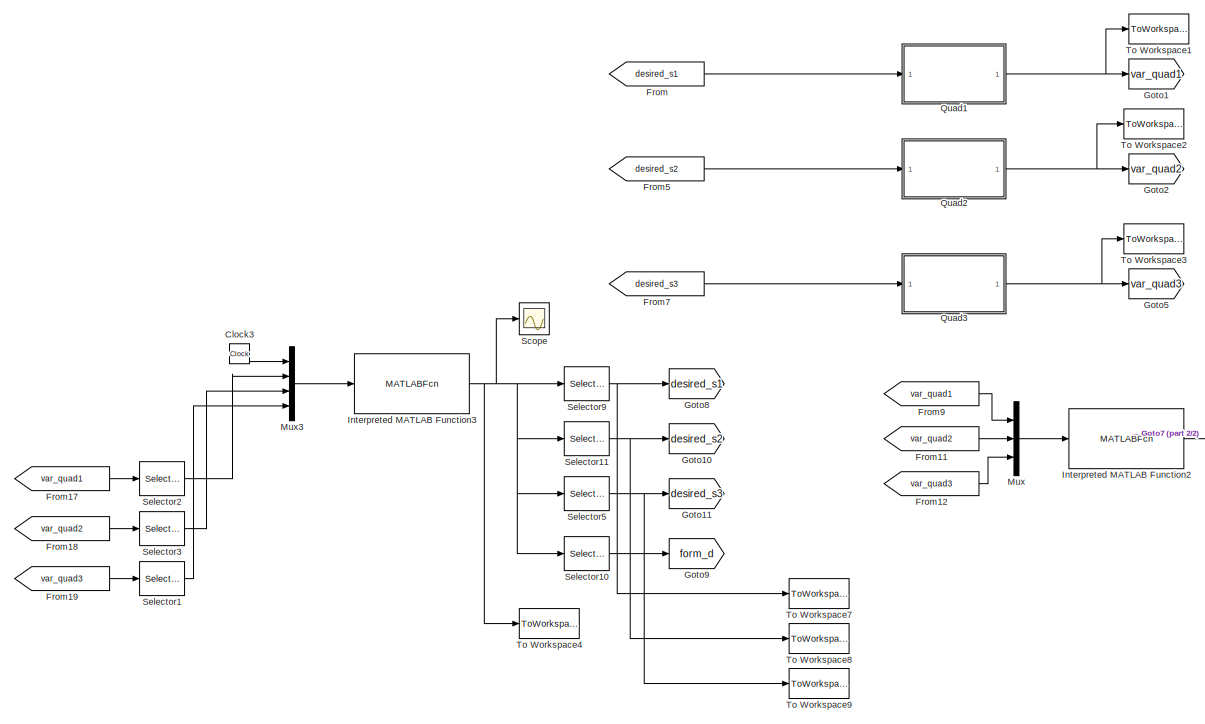
[diagram: root canvas - part 1/2, most of the canvas]
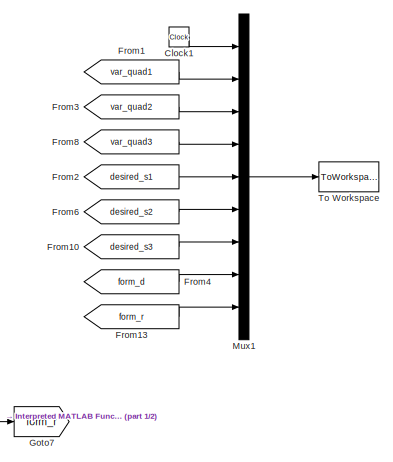
[diagram: root canvas - part 2/2, middle right region]
MODEL slx_cbf6b608a6d2
KIND model
CONFIG AbsTol = auto
CONFIG EnableMultiTasking = off
CONFIG FixedStep = auto
CONFIG MaxStep = auto
CONFIG MinStep = auto
CONFIG RelTol = 1e-3
CONFIG SampleTimeConstraint = Unconstrained
CONFIG Solver = VariableStepAuto
CONFIG SolverName = VariableStepAuto
CONFIG StartTime = 0.0
CONFIG StopTime = 100
BLOCK [Clock] Clock1
BLOCK [Clock] Clock3
BLOCK [From] From
  GotoTag = desired_s1
BLOCK [From] From1
  GotoTag = var_quad1
BLOCK [From] From10
  GotoTag = desired_s3
BLOCK [From] From11
  GotoTag = var_quad2
BLOCK [From] From12
  GotoTag = var_quad3
BLOCK [From] From13
  GotoTag = form_r
BLOCK [From] From17
  GotoTag = var_quad1
BLOCK [From] From18
  GotoTag = var_quad2
BLOCK [From] From19
  GotoTag = var_quad3
BLOCK [From] From2
  GotoTag = desired_s1
BLOCK [From] From3
  GotoTag = var_quad2
BLOCK [From] From4
  GotoTag = form_d
BLOCK [From] From5
  GotoTag = desired_s2
BLOCK [From] From6
  GotoTag = desired_s2
BLOCK [From] From7
  GotoTag = desired_s3
BLOCK [From] From8
  GotoTag = var_quad3
BLOCK [From] From9
  GotoTag = var_quad1
BLOCK [Goto] Goto1
  GotoTag = var_quad1
BLOCK [Goto] Goto10
  GotoTag = desired_s2
BLOCK [Goto] Goto11
  GotoTag = desired_s3
BLOCK [Goto] Goto2
  GotoTag = var_quad2
BLOCK [Goto] Goto5
  GotoTag = var_quad3
BLOCK [Goto] Goto7
  GotoTag = form_r
BLOCK [Goto] Goto8
  GotoTag = desired_s1
BLOCK [Goto] Goto9
  GotoTag = form_d
BLOCK [MATLABFcn] Interpreted MATLAB Function2
  MATLABFcn = Compute_F
  Ports = [1, 1]
BLOCK [MATLABFcn] Interpreted MATLAB Function3
  MATLABFcn = desiredtrajectory_
  Ports = [1, 1]
BLOCK [Mux] Mux
  DisplayOption = bar
  Inputs = 3
  Ports = [3, 1]
BLOCK [Mux] Mux1
  DisplayOption = bar
  Inputs = 9
  Ports = [9, 1]
BLOCK [Mux] Mux3
  DisplayOption = bar
  Ports = [4, 1]
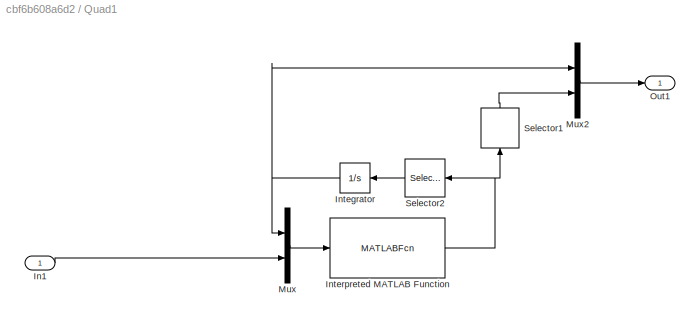
BLOCK [SubSystem] Quad1
  Ports = [1, 1]
  RequestExecContextInheritance = off
BLOCK [Inport] Quad1/In1
  IconDisplay = Port number
BLOCK [Integrator] Quad1/Integrator
  InitialCondition = des_quad10
  Ports = [1, 1]
BLOCK [MATLABFcn] Quad1/Interpreted MATLAB Function
  MATLABFcn = quadEOM_sim
  OutputDimensions = 27
  Ports = [1, 1]
BLOCK [Mux] Quad1/Mux
  DisplayOption = bar
  Inputs = 2
  Ports = [2, 1]
BLOCK [Mux] Quad1/Mux2
  DisplayOption = bar
  Inputs = 2
  Ports = [2, 1]
BLOCK [Outport] Quad1/Out1
  IconDisplay = Port number
BLOCK [Selector] Quad1/Selector1
  IndexOptions = Index vector (dialog)
  Indices = [14:27]
  InputPortWidth = 27
  OutputSizes = 1
  Ports = [1, 1]
BLOCK [Selector] Quad1/Selector2
  IndexOptions = Index vector (dialog)
  Indices = [1:13]
  InputPortWidth = 27
  OutputSizes = 1
  Ports = [1, 1]
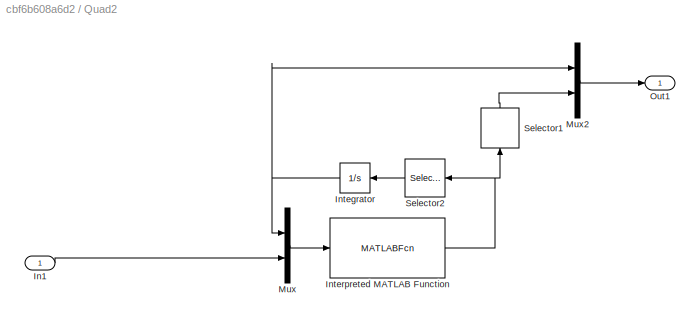
BLOCK [SubSystem] Quad2
  Ports = [1, 1]
  RequestExecContextInheritance = off
BLOCK [Inport] Quad2/In1
  IconDisplay = Port number
BLOCK [Integrator] Quad2/Integrator
  InitialCondition = des_quad20
  Ports = [1, 1]
BLOCK [MATLABFcn] Quad2/Interpreted MATLAB Function
  MATLABFcn = quadEOM_sim
  OutputDimensions = 27
  Ports = [1, 1]
BLOCK [Mux] Quad2/Mux
  DisplayOption = bar
  Inputs = 2
  Ports = [2, 1]
BLOCK [Mux] Quad2/Mux2
  DisplayOption = bar
  Inputs = 2
  Ports = [2, 1]
BLOCK [Outport] Quad2/Out1
  IconDisplay = Port number
BLOCK [Selector] Quad2/Selector1
  IndexOptions = Index vector (dialog)
  Indices = [14:27]
  InputPortWidth = 27
  OutputSizes = 1
  Ports = [1, 1]
BLOCK [Selector] Quad2/Selector2
  IndexOptions = Index vector (dialog)
  Indices = [1:13]
  InputPortWidth = 27
  OutputSizes = 1
  Ports = [1, 1]
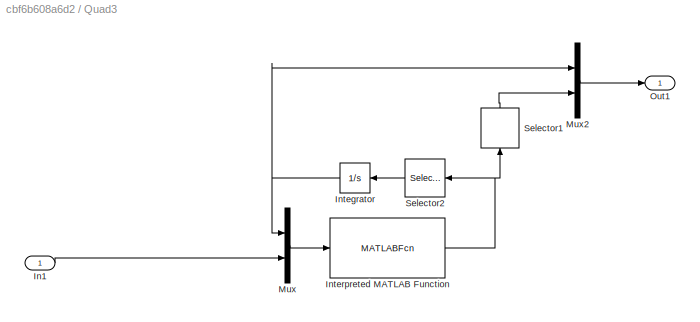
BLOCK [SubSystem] Quad3
  Ports = [1, 1]
  RequestExecContextInheritance = off
BLOCK [Inport] Quad3/In1
  IconDisplay = Port number
BLOCK [Integrator] Quad3/Integrator
  InitialCondition = des_quad30
  Ports = [1, 1]
BLOCK [MATLABFcn] Quad3/Interpreted MATLAB Function
  MATLABFcn = quadEOM_sim
  OutputDimensions = 27
  Ports = [1, 1]
BLOCK [Mux] Quad3/Mux
  DisplayOption = bar
  Inputs = 2
  Ports = [2, 1]
BLOCK [Mux] Quad3/Mux2
  DisplayOption = bar
  Inputs = 2
  Ports = [2, 1]
BLOCK [Outport] Quad3/Out1
  IconDisplay = Port number
BLOCK [Selector] Quad3/Selector1
  IndexOptions = Index vector (dialog)
  Indices = [14:27]
  InputPortWidth = 27
  OutputSizes = 1
  Ports = [1, 1]
BLOCK [Selector] Quad3/Selector2
  IndexOptions = Index vector (dialog)
  Indices = [1:13]
  InputPortWidth = 27
  OutputSizes = 1
  Ports = [1, 1]
BLOCK [Scope] Scope
  Floating = off
  NumInputPorts = 1
  Ports = [1]
  ScopeSpecificationString = Simulink.scopes.TimeScopeBlockCfg('CurrentConfiguration', extmgr.ConfigurationSet(extmgr.Configuration('Core','General UI',true),extmgr.Configuration('Core','Source UI',true),extmgr.Configuration('Sources','WiredSimulink',true),extmgr.Configuration('Visuals','Time Domain',true,'SerializedDisplays',{struct('MinYLimReal','-2.50304','MaxYLimReal','12.50304','YLabelReal','','MinYLimMag','0.00000','Max...<+2605ch>
BLOCK [Selector] Selector1
  IndexOptions = Index vector (dialog)
  Indices = [1:3]
  InputPortWidth = 27
  OutputSizes = 1
  Ports = [1, 1]
BLOCK [Selector] Selector10
  IndexOptions = Index vector (dialog)
  Indices = [30:38]
  InputPortWidth = 38
  OutputSizes = 1
  Ports = [1, 1]
BLOCK [Selector] Selector11
  IndexOptions = Index vector (dialog)
  Indices = [10:18, 28, 29]
  InputPortWidth = 38
  OutputSizes = 1
  Ports = [1, 1]
BLOCK [Selector] Selector2
  IndexOptions = Index vector (dialog)
  Indices = [1:3]
  InputPortWidth = 27
  OutputSizes = 1
  Ports = [1, 1]
BLOCK [Selector] Selector3
  IndexOptions = Index vector (dialog)
  Indices = [1:3]
  InputPortWidth = 27
  OutputSizes = 1
  Ports = [1, 1]
BLOCK [Selector] Selector5
  IndexOptions = Index vector (dialog)
  Indices = [19:27, 28, 29]
  InputPortWidth = 38
  OutputSizes = 1
  Ports = [1, 1]
BLOCK [Selector] Selector9
  IndexOptions = Index vector (dialog)
  Indices = [1:9, 28, 29]
  InputPortWidth = 38
  OutputSizes = 1
  Ports = [1, 1]
BLOCK [ToWorkspace] To Workspace
  FixptAsFi = on
  MaxDataPoints = inf
  Ports = [1]
  SampleTime = -1
  VariableName = var
BLOCK [ToWorkspace] To Workspace1
  FixptAsFi = on
  MaxDataPoints = inf
  Ports = [1]
  SampleTime = -1
  VariableName = out1
BLOCK [ToWorkspace] To Workspace2
  FixptAsFi = on
  MaxDataPoints = inf
  Ports = [1]
  SampleTime = -1
  VariableName = out2
BLOCK [ToWorkspace] To Workspace3
  FixptAsFi = on
  MaxDataPoints = inf
  Ports = [1]
  SampleTime = -1
  VariableName = out3
BLOCK [ToWorkspace] To Workspace4
  FixptAsFi = on
  MaxDataPoints = inf
  Ports = [1]
  SampleTime = -1
  VariableName = des
BLOCK [ToWorkspace] To Workspace7
  FixptAsFi = on
  MaxDataPoints = inf
  Ports = [1]
  SampleTime = -1
  VariableName = des1
BLOCK [ToWorkspace] To Workspace8
  FixptAsFi = on
  MaxDataPoints = inf
  Ports = [1]
  SampleTime = -1
  VariableName = des2
BLOCK [ToWorkspace] To Workspace9
  FixptAsFi = on
  MaxDataPoints = inf
  Ports = [1]
  SampleTime = -1
  VariableName = des3
LINE Clock1:1 -> Mux1:1
LINE Clock3:1 -> Mux3:1
LINE From10:1 -> Mux1:7
LINE From11:1 -> Mux:2
LINE From12:1 -> Mux:3
LINE From13:1 -> Mux1:9
LINE From17:1 -> Selector2:1
LINE From18:1 -> Selector3:1
LINE From19:1 -> Selector1:1
LINE From1:1 -> Mux1:2
LINE From2:1 -> Mux1:5
LINE From3:1 -> Mux1:3
LINE From4:1 -> Mux1:8
LINE From5:1 -> Quad2:1
LINE From6:1 -> Mux1:6
LINE From7:1 -> Quad3:1
LINE From8:1 -> Mux1:4
LINE From9:1 -> Mux:1
LINE From:1 -> Quad1:1
LINE Interpreted MATLAB Function2:1 -> Goto7:1
NET Interpreted MATLAB Function3:1 -> Scope:1, Selector10:1, Selector11:1, Selector5:1, Selector9:1, To Workspace4:1
LINE Mux1:1 -> To Workspace:1
LINE Mux3:1 -> Interpreted MATLAB Function3:1
LINE Mux:1 -> Interpreted MATLAB Function2:1
LINE Quad1/In1:1 -> Quad1/Mux:2
NET Quad1/Integrator:1 -> Quad1/Mux2:1, Quad1/Mux:1
NET Quad1/Interpreted MATLAB Function:1 -> Quad1/Selector1:1, Quad1/Selector2:1
LINE Quad1/Mux2:1 -> Quad1/Out1:1
LINE Quad1/Mux:1 -> Quad1/Interpreted MATLAB Function:1
LINE Quad1/Selector1:1 -> Quad1/Mux2:2
LINE Quad1/Selector2:1 -> Quad1/Integrator:1
NET Quad1:1 -> Goto1:1, To Workspace1:1
LINE Quad2/In1:1 -> Quad2/Mux:2
NET Quad2/Integrator:1 -> Quad2/Mux2:1, Quad2/Mux:1
NET Quad2/Interpreted MATLAB Function:1 -> Quad2/Selector1:1, Quad2/Selector2:1
LINE Quad2/Mux2:1 -> Quad2/Out1:1
LINE Quad2/Mux:1 -> Quad2/Interpreted MATLAB Function:1
LINE Quad2/Selector1:1 -> Quad2/Mux2:2
LINE Quad2/Selector2:1 -> Quad2/Integrator:1
NET Quad2:1 -> Goto2:1, To Workspace2:1
LINE Quad3/In1:1 -> Quad3/Mux:2
NET Quad3/Integrator:1 -> Quad3/Mux2:1, Quad3/Mux:1
NET Quad3/Interpreted MATLAB Function:1 -> Quad3/Selector1:1, Quad3/Selector2:1
LINE Quad3/Mux2:1 -> Quad3/Out1:1
LINE Quad3/Mux:1 -> Quad3/Interpreted MATLAB Function:1
LINE Quad3/Selector1:1 -> Quad3/Mux2:2
LINE Quad3/Selector2:1 -> Quad3/Integrator:1
NET Quad3:1 -> Goto5:1, To Workspace3:1
LINE Selector10:1 -> Goto9:1
NET Selector11:1 -> Goto10:1, To Workspace8:1
LINE Selector1:1 -> Mux3:4
LINE Selector2:1 -> Mux3:2
LINE Selector3:1 -> Mux3:3
NET Selector5:1 -> Goto11:1, To Workspace9:1
NET Selector9:1 -> Goto8:1, To Workspace7:1
note: NET lines group one-source signal fan-out (src -> all destinations, sorted); 1:1 wires keep LINE
